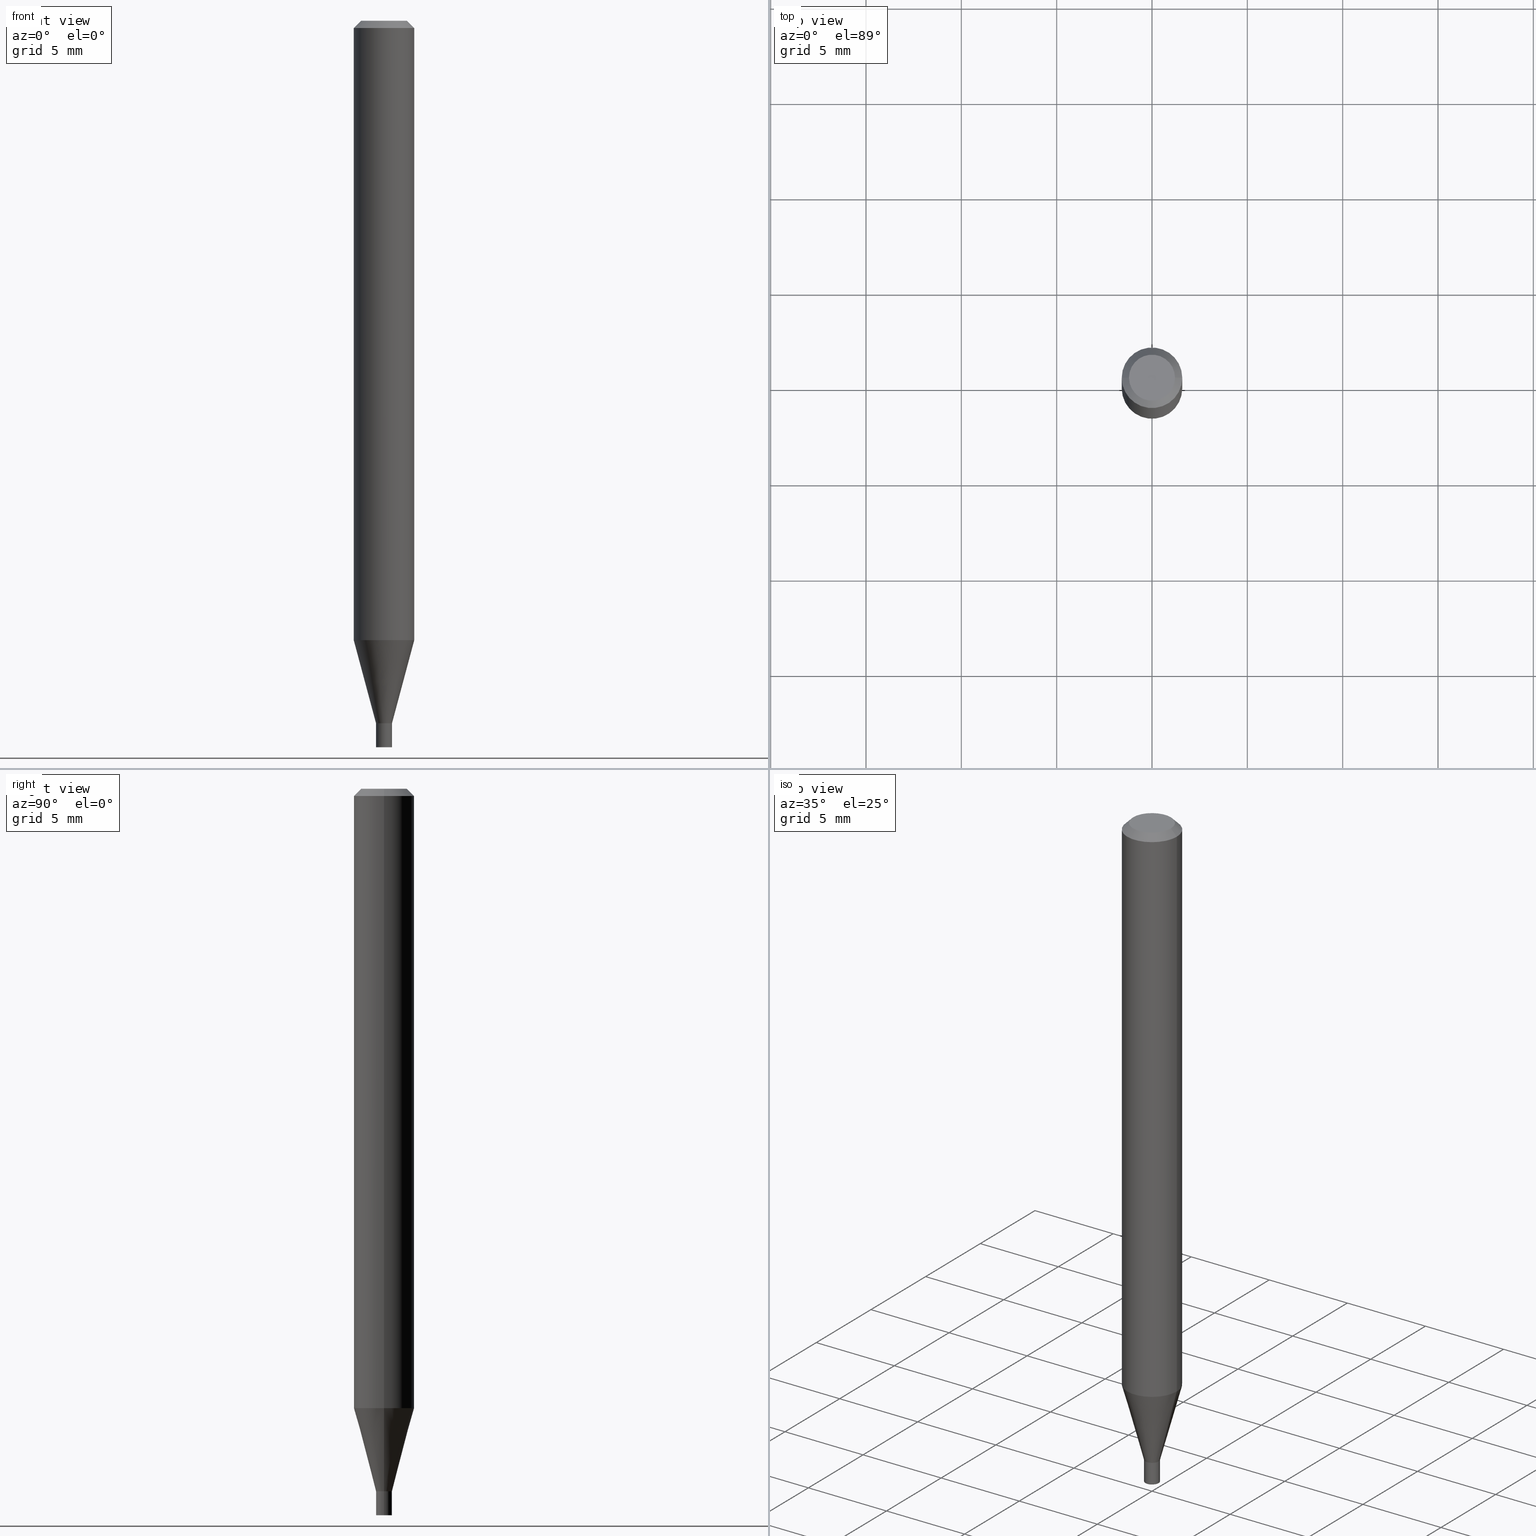
[diagram: canonical four-view strip — front | top / right | iso, engineering-drawing reading convention]
A machine part, canonical four-view strip (front | top / right | iso — engineering-drawing reading convention). The complete STEP part file that produces these views, byte-faithful:
ISO-10303-21;
HEADER;
FILE_DESCRIPTION (( 'STEP AP203' ),
    '1' );
FILE_NAME ('04068.STEP',
    '2024-03-14T16:56:40',
    ( '' ),
    ( '' ),
    'SwSTEP 2.0',
    'SolidWorks 2023',
    '' );
FILE_SCHEMA (( 'CONFIG_CONTROL_DESIGN' ));
ENDSEC;

DATA;
#1 = CARTESIAN_POINT ( 'NONE',  ( 3.127328267053182321E-29, -4.464995937480882863E-15, -1.278825662851830858 ) ) ;
#2 = VECTOR ( 'NONE', #207, 39.37007874015748854 ) ;
#3 = FACE_OUTER_BOUND ( 'NONE', #309, .T. ) ;
#4 = DIRECTION ( 'NONE',  ( 1.000000000000000000, -6.982962677686274599E-15, 0.000000000000000000 ) ) ;
#5 = DIRECTION ( 'NONE',  ( 1.000000000000000000, -6.982962677686271444E-15, 0.000000000000000000 ) ) ;
#6 = PRODUCT ( '04068', '04068', '', ( #361 ) ) ;
#7 = CARTESIAN_POINT ( 'NONE',  ( 0.06250000000000000000, -4.364351673553916694E-16, 3.047610484872459871E-30 ) ) ;
#8 = DIRECTION ( 'NONE',  ( 1.000000000000000000, -6.982962677686266711E-15, 0.000000000000000000 ) ) ;
#9 = ADVANCED_FACE ( 'NONE', ( #359 ), #317, .F. ) ;
#10 = DIRECTION ( 'NONE',  ( 1.000000000000000000, -6.982962677686273021E-15, 0.000000000000000000 ) ) ;
#11 = VECTOR ( 'NONE', #177, 39.37007874015748143 ) ;
#12 = CARTESIAN_POINT ( 'NONE',  ( -0.01649999999999965383, -4.484030429111193904E-15, -1.450499999999999901 ) ) ;
#13 = ORIENTED_EDGE ( 'NONE', *, *, #274, .F. ) ;
#14 = APPROVAL_PERSON_ORGANIZATION ( #189, #366, #466 ) ;
#15 = EDGE_CURVE ( 'NONE', #90, #204, #81, .T. ) ;
#16 = CARTESIAN_POINT ( 'NONE',  ( -0.01649999999999965383, -4.947154130591568350E-15, -1.450499999999999901 ) ) ;
#17 = EDGE_LOOP ( 'NONE', ( #68, #102, #439, #166 ) ) ;
#18 = EDGE_CURVE ( 'NONE', #409, #275, #446, .T. ) ;
#19 = LINE ( 'NONE', #31, #11 ) ;
#20 = ORIENTED_EDGE ( 'NONE', *, *, #388, .F. ) ;
#21 = CC_DESIGN_PERSON_AND_ORGANIZATION_ASSIGNMENT ( #456, #148, ( #231 ) ) ;
#22 = DIRECTION ( 'NONE',  ( 1.000000000000000000, -6.982962677686265922E-15, 4.876176775795935793E-29 ) ) ;
#23 = DIRECTION ( 'NONE',  ( -2.445468806185136877E-29, 3.491481338843145188E-15, 1.000000000000000000 ) ) ;
#24 = EDGE_LOOP ( 'NONE', ( #104, #132, #184, #106 ) ) ;
#25 = VERTEX_POINT ( 'NONE', #43 ) ;
#26 = AXIS2_PLACEMENT_3D ( 'NONE', #80, #82, #227 ) ;
#27 = DIRECTION ( 'NONE',  ( 2.438088387897960049E-29, -3.491481338843145188E-15, -1.000000000000000000 ) ) ;
#28 = CARTESIAN_POINT ( 'NONE',  ( 0.04749999999999999362, -4.035134999187569255E-16, 4.958922291554157852E-16 ) ) ;
#29 = VERTEX_POINT ( 'NONE', #192 ) ;
#30 = ORIENTED_EDGE ( 'NONE', *, *, #237, .T. ) ;
#31 = CARTESIAN_POINT ( 'NONE',  ( 0.01650000000000000078, -1.152188841818234017E-16, 8.045691680063294479E-31 ) ) ;
#32 = CONICAL_SURFACE ( 'NONE', #26, 0.06250000000000000000, 0.7853981633974318477 ) ;
#33 = DATE_AND_TIME ( #179, #79 ) ;
#34 = EDGE_CURVE ( 'NONE', #90, #275, #436, .T. ) ;
#35 =( CONVERSION_BASED_UNIT ( 'INCH', #151 ) LENGTH_UNIT ( ) NAMED_UNIT ( #134 ) );
#36 = ORIENTED_EDGE ( 'NONE', *, *, #274, .T. ) ;
#37 = APPROVAL_STATUS ( 'not_yet_approved' ) ;
#38 = EDGE_CURVE ( 'NONE', #291, #129, #116, .T. ) ;
#39 = CIRCLE ( 'NONE', #300, 0.01650000000000000078 ) ;
#40 = AXIS2_PLACEMENT_3D ( 'NONE', #147, #428, #185 ) ;
#41 = CARTESIAN_POINT ( 'NONE',  ( 0.01649999999999965383, -5.179612566173803826E-15, -1.450499999999999901 ) ) ;
#42 = FACE_OUTER_BOUND ( 'NONE', #236, .T. ) ;
#43 = CARTESIAN_POINT ( 'NONE',  ( -0.06250000000000000000, -4.020906727630820247E-15, -1.278825662851830858 ) ) ;
#44 = CARTESIAN_POINT ( 'NONE',  ( -1.212688977629174450E-44, 1.731398464173454166E-30, 4.958922291554132214E-16 ) ) ;
#45 = VECTOR ( 'NONE', #156, 39.37007874015748143 ) ;
#46 = CARTESIAN_POINT ( 'NONE',  ( 0.01649999999999965383, -1.152188841818209612E-16, 8.045691680063124571E-31 ) ) ;
#47 = DIRECTION ( 'NONE',  ( 1.000000000000000000, -6.982962677686273021E-15, 0.000000000000000000 ) ) ;
#48 = FACE_OUTER_BOUND ( 'NONE', #451, .T. ) ;
#49 = EDGE_CURVE ( 'NONE', #29, #173, #84, .T. ) ;
#50 = CYLINDRICAL_SURFACE ( 'NONE', #462, 0.06250000000000000000 ) ;
#51 = LINE ( 'NONE', #210, #279 ) ;
#52 = VERTEX_POINT ( 'NONE', #159 ) ;
#53 = EDGE_CURVE ( 'NONE', #108, #409, #51, .T. ) ;
#54 = DIRECTION ( 'NONE',  ( -1.000000000000000000, 6.982962677686266711E-15, 0.000000000000000000 ) ) ;
#55 = VECTOR ( 'NONE', #167, 39.37007874015748854 ) ;
#56 = LINE ( 'NONE', #131, #377 ) ;
#57 = CIRCLE ( 'NONE', #139, 0.01650000000000000078 ) ;
#58 = CARTESIAN_POINT ( 'NONE',  ( -0.06250000000000000000, 3.840629472727444916E-16, -0.01499999999999999944 ) ) ;
#59 = DIRECTION ( 'NONE',  ( -2.445468806185136597E-29, 3.491481338843145583E-15, 1.000000000000000000 ) ) ;
#60 = CARTESIAN_POINT ( 'NONE',  ( 3.576687321579069994E-29, -5.368277968210015545E-15, -1.500000000000000222 ) ) ;
#61 = APPLICATION_CONTEXT ( 'configuration controlled 3d designs of mechanical parts and assemblies' ) ;
#62 = CARTESIAN_POINT ( 'NONE',  ( -0.01649999999999965036, -4.945408389922146846E-15, -1.450000000000000178 ) ) ;
#63 = ORIENTED_EDGE ( 'NONE', *, *, #429, .T. ) ;
#64 = VERTEX_POINT ( 'NONE', #411 ) ;
#65 = CIRCLE ( 'NONE', #286, 0.01649999999999965036 ) ;
#66 = APPROVAL ( #86, 'UNSPECIFIED' ) ;
#67 = CARTESIAN_POINT ( 'NONE',  ( 0.06250000000000000000, -4.811533449433679005E-16, -0.01499999999999999944 ) ) ;
#68 = ORIENTED_EDGE ( 'NONE', *, *, #399, .F. ) ;
#69 = APPROVAL_ROLE ( '' ) ;
#70 = ORIENTED_EDGE ( 'NONE', *, *, #38, .T. ) ;
#71 = DATE_TIME_ROLE ( 'creation_date' ) ;
#72 = ORIENTED_EDGE ( 'NONE', *, *, #15, .F. ) ;
#73 = AXIS2_PLACEMENT_3D ( 'NONE', #327, #182, #127 ) ;
#74 = AXIS2_PLACEMENT_3D ( 'NONE', #60, #351, #22 ) ;
#75 = COORDINATED_UNIVERSAL_TIME_OFFSET ( 5, 0, .BEHIND. ) ;
#76 = DATE_TIME_ROLE ( 'classification_date' ) ;
#77 = PRODUCT_DEFINITION ( 'UNKNOWN', '', #231, #217 ) ;
#78 = VECTOR ( 'NONE', #165, 39.37007874015748143 ) ;
#79 = LOCAL_TIME ( 12, 56, 40.00000000000000000, #369 ) ;
#80 = CARTESIAN_POINT ( 'NONE',  ( 3.668203209277705088E-31, -5.237222008264718399E-17, -0.01499999999999999944 ) ) ;
#81 = LINE ( 'NONE', #41, #107 ) ;
#82 = DIRECTION ( 'NONE',  ( 2.445468806185136597E-29, -3.491481338843145583E-15, -1.000000000000000000 ) ) ;
#83 = DIRECTION ( 'NONE',  ( 1.000000000000000000, -6.982962677686273021E-15, 0.000000000000000000 ) ) ;
#84 = CIRCLE ( 'NONE', #318, 0.06250000000000000000 ) ;
#85 = DIRECTION ( 'NONE',  ( 1.000000000000000000, -6.982962677686262766E-15, 0.000000000000000000 ) ) ;
#86 = APPROVAL_STATUS ( 'not_yet_approved' ) ;
#87 = DIRECTION ( 'NONE',  ( 1.000000000000000000, -6.982962677686267499E-15, 4.852736867747366768E-29 ) ) ;
#88 = CARTESIAN_POINT ( 'NONE',  ( 3.547152503371539970E-29, -5.064393681991981435E-15, -1.450499999999999678 ) ) ;
#89 = EDGE_CURVE ( 'NONE', #204, #25, #310, .T. ) ;
#90 = VERTEX_POINT ( 'NONE', #343 ) ;
#91 = DIRECTION ( 'NONE',  ( -2.445468806185136597E-29, 3.491481338843145583E-15, 1.000000000000000000 ) ) ;
#92 = DIRECTION ( 'NONE',  ( 1.000000000000000000, -6.982962677686262766E-15, 0.000000000000000000 ) ) ;
#93 = ORIENTED_EDGE ( 'NONE', *, *, #270, .F. ) ;
#94 = DIRECTION ( 'NONE',  ( 1.000000000000000000, -6.982962677686243834E-15, 0.000000000000000000 ) ) ;
#95 = FACE_OUTER_BOUND ( 'NONE', #441, .T. ) ;
#96 = EDGE_LOOP ( 'NONE', ( #70, #36 ) ) ;
#97 = LOCAL_TIME ( 12, 56, 40.00000000000000000, #394 ) ;
#98 = LINE ( 'NONE', #142, #78 ) ;
#99 = ORIENTED_EDGE ( 'NONE', *, *, #251, .T. ) ;
#100 = DIRECTION ( 'NONE',  ( -2.445468806185136597E-29, 3.491481338843145583E-15, 1.000000000000000000 ) ) ;
#101 = CARTESIAN_POINT ( 'NONE',  ( 0.000000000000000000, 0.000000000000000000, 0.000000000000000000 ) ) ;
#102 = ORIENTED_EDGE ( 'NONE', *, *, #53, .T. ) ;
#103 = ORIENTED_EDGE ( 'NONE', *, *, #261, .T. ) ;
#104 = ORIENTED_EDGE ( 'NONE', *, *, #360, .F. ) ;
#105 = CARTESIAN_POINT ( 'NONE',  ( -0.01600000000000000033, -4.948057617096256470E-15, -1.450499999999999678 ) ) ;
#106 = ORIENTED_EDGE ( 'NONE', *, *, #49, .T. ) ;
#107 = VECTOR ( 'NONE', #117, 39.37007874015747433 ) ;
#108 = VERTEX_POINT ( 'NONE', #12 ) ;
#109 = DATE_AND_TIME ( #181, #188 ) ;
#110 = EDGE_CURVE ( 'NONE', #423, #52, #56, .T. ) ;
#111 = PERSON_AND_ORGANIZATION ( #442, #390 ) ;
#112 = AXIS2_PLACEMENT_3D ( 'NONE', #163, #202, #92 ) ;
#113 = CC_DESIGN_APPROVAL ( #66, ( #396 ) ) ;
#114 = DIRECTION ( 'NONE',  ( 0.000000000000000000, 0.000000000000000000, 1.000000000000000000 ) ) ;
#115 = ADVANCED_BREP_SHAPE_REPRESENTATION ( '04068', ( #322, #325, #257 ), #150 ) ;
#116 = CIRCLE ( 'NONE', #335, 0.04749999999999999362 ) ;
#117 = DIRECTION ( 'NONE',  ( 0.2588190451025213501, 1.565188264969621968E-15, 0.9659258262890682012 ) ) ;
#118 = CARTESIAN_POINT ( 'NONE',  ( 3.668203209277704895E-29, -5.237222008264718177E-15, -1.500000000000000222 ) ) ;
#119 = DIRECTION ( 'NONE',  ( 1.000000000000000000, -6.982962677686274599E-15, 0.000000000000000000 ) ) ;
#120 = ADVANCED_FACE ( 'NONE', ( #95 ), #208, .T. ) ;
#121 = CC_DESIGN_PERSON_AND_ORGANIZATION_ASSIGNMENT ( #254, #395, ( #396 ) ) ;
#122 = CARTESIAN_POINT ( 'NONE',  ( 3.547152503371539970E-29, -5.064393681991981435E-15, -1.450499999999999678 ) ) ;
#123 = CIRCLE ( 'NONE', #186, 0.01600000000000000033 ) ;
#124 = DIRECTION ( 'NONE',  ( -2.445468806185136597E-29, 3.491481338843145583E-15, 1.000000000000000000 ) ) ;
#125 = CARTESIAN_POINT ( 'NONE',  ( 3.547152503371540530E-29, -5.064393681991982224E-15, -1.450499999999999901 ) ) ;
#126 = ORIENTED_EDGE ( 'NONE', *, *, #307, .T. ) ;
#127 = DIRECTION ( 'NONE',  ( -1.000000000000000000, 6.982962677686265922E-15, -4.876176775795935793E-29 ) ) ;
#128 = CARTESIAN_POINT ( 'NONE',  ( 3.668203209277705088E-31, -5.237222008264718399E-17, -0.01499999999999999944 ) ) ;
#129 = VERTEX_POINT ( 'NONE', #28 ) ;
#130 = DIRECTION ( 'NONE',  ( -2.445468806185136597E-29, 3.491481338843145583E-15, 1.000000000000000000 ) ) ;
#131 = CARTESIAN_POINT ( 'NONE',  ( -0.01650000000000000078, 1.172395514004165362E-16, -8.116242898920594736E-31 ) ) ;
#132 = ORIENTED_EDGE ( 'NONE', *, *, #38, .F. ) ;
#133 = ORIENTED_EDGE ( 'NONE', *, *, #49, .F. ) ;
#134 = DIMENSIONAL_EXPONENTS ( 1.000000000000000000, 0.000000000000000000, 0.000000000000000000, 0.000000000000000000, 0.000000000000000000, 0.000000000000000000, 0.000000000000000000 ) ;
#135 = CARTESIAN_POINT ( 'NONE',  ( -0.01650000000000000078, -5.033568293727934749E-15, -1.500000000000000222 ) ) ;
#136 = CONICAL_SURFACE ( 'NONE', #168, 0.01649999999999965383, 0.2617993877991500740 ) ;
#137 = ORIENTED_EDGE ( 'NONE', *, *, #222, .T. ) ;
#138 = ORIENTED_EDGE ( 'NONE', *, *, #261, .F. ) ;
#139 = AXIS2_PLACEMENT_3D ( 'NONE', #169, #100, #212 ) ;
#140 = FACE_OUTER_BOUND ( 'NONE', #17, .T. ) ;
#141 = ORIENTED_EDGE ( 'NONE', *, *, #224, .F. ) ;
#142 = CARTESIAN_POINT ( 'NONE',  ( 0.01600000000000000033, -5.176121084834961608E-15, -1.450499999999999678 ) ) ;
#143 = ADVANCED_FACE ( 'NONE', ( #246 ), #355, .F. ) ;
#144 = CARTESIAN_POINT ( 'NONE',  ( 3.547152503371540530E-29, -5.064393681991982224E-15, -1.450499999999999901 ) ) ;
#145 = ORIENTED_EDGE ( 'NONE', *, *, #110, .F. ) ;
#146 = ORIENTED_EDGE ( 'NONE', *, *, #258, .T. ) ;
#147 = CARTESIAN_POINT ( 'NONE',  ( 3.547152503371539970E-29, -5.064393681991981435E-15, -1.450499999999999678 ) ) ;
#148 = PERSON_AND_ORGANIZATION_ROLE ( 'creator' ) ;
#149 = AXIS2_PLACEMENT_3D ( 'NONE', #125, #201, #47 ) ;
#150 =( GEOMETRIC_REPRESENTATION_CONTEXT ( 3 ) GLOBAL_UNCERTAINTY_ASSIGNED_CONTEXT ( ( #336 ) ) GLOBAL_UNIT_ASSIGNED_CONTEXT ( ( #35, #427, #216 ) ) REPRESENTATION_CONTEXT ( 'NONE', 'WORKASPACE' ) );
#151 = LENGTH_MEASURE_WITH_UNIT ( LENGTH_MEASURE( 0.02539999999999999897 ), #364 );
#152 = EDGE_CURVE ( 'NONE', #90, #108, #438, .T. ) ;
#153 = FACE_OUTER_BOUND ( 'NONE', #211, .T. ) ;
#154 = CIRCLE ( 'NONE', #256, 0.06250000000000000000 ) ;
#155 = FACE_OUTER_BOUND ( 'NONE', #461, .T. ) ;
#156 = DIRECTION ( 'NONE',  ( -2.445468806185136877E-29, 3.491481338843145188E-15, 1.000000000000000000 ) ) ;
#157 = CARTESIAN_POINT ( 'NONE',  ( 0.01650000000000000078, -5.179612566173805404E-15, -1.450499999999999901 ) ) ;
#158 = DIRECTION ( 'NONE',  ( -2.445468806185136597E-29, 3.491481338843145583E-15, 1.000000000000000000 ) ) ;
#159 = CARTESIAN_POINT ( 'NONE',  ( -0.01650000000000000078, -5.033568293727934749E-15, -1.450499999999999901 ) ) ;
#160 = APPLICATION_CONTEXT ( 'configuration controlled 3d designs of mechanical parts and assemblies' ) ;
#161 = AXIS2_PLACEMENT_3D ( 'NONE', #200, #264, #10 ) ;
#162 = DIRECTION ( 'NONE',  ( -2.445468806185136877E-29, 3.491481338843145188E-15, 1.000000000000000000 ) ) ;
#163 = CARTESIAN_POINT ( 'NONE',  ( 3.127328267053182321E-29, -4.464995937480882863E-15, -1.278825662851830858 ) ) ;
#164 = VERTEX_POINT ( 'NONE', #157 ) ;
#165 = DIRECTION ( 'NONE',  ( 0.7071067811865642261, -2.468850131082431399E-15, 0.7071067811865309194 ) ) ;
#166 = ORIENTED_EDGE ( 'NONE', *, *, #34, .F. ) ;
#167 = DIRECTION ( 'NONE',  ( 0.7071067811865358044, -7.319954787623215025E-15, -0.7071067811865591191 ) ) ;
#168 = AXIS2_PLACEMENT_3D ( 'NONE', #297, #234, #83 ) ;
#169 = CARTESIAN_POINT ( 'NONE',  ( 3.668203209277704895E-29, -5.237222008264718177E-15, -1.500000000000000222 ) ) ;
#170 = CC_DESIGN_SECURITY_CLASSIFICATION ( #396, ( #231 ) ) ;
#171 = EDGE_LOOP ( 'NONE', ( #30, #63, #350, #457 ) ) ;
#172 = CYLINDRICAL_SURFACE ( 'NONE', #416, 0.01650000000000000078 ) ;
#173 = VERTEX_POINT ( 'NONE', #338 ) ;
#174 = ORIENTED_EDGE ( 'NONE', *, *, #378, .F. ) ;
#175 = ADVANCED_FACE ( 'NONE', ( #3 ), #50, .T. ) ;
#176 = ORIENTED_EDGE ( 'NONE', *, *, #224, .T. ) ;
#177 = DIRECTION ( 'NONE',  ( -2.445468806185136877E-29, 3.491481338843145188E-15, 1.000000000000000000 ) ) ;
#178 = ORIENTED_EDGE ( 'NONE', *, *, #319, .T. ) ;
#179 = CALENDAR_DATE ( 2024, 14, 3 ) ;
#180 = LOCAL_TIME ( 12, 56, 40.00000000000000000, #403 ) ;
#181 = CALENDAR_DATE ( 2024, 14, 3 ) ;
#182 = DIRECTION ( 'NONE',  ( 2.438088387897960049E-29, -3.491481338843145188E-15, -1.000000000000000000 ) ) ;
#183 = PERSON_AND_ORGANIZATION_ROLE ( 'design_owner' ) ;
#184 = ORIENTED_EDGE ( 'NONE', *, *, #378, .T. ) ;
#185 = DIRECTION ( 'NONE',  ( 1.000000000000000000, -6.982962677686271444E-15, 0.000000000000000000 ) ) ;
#186 = AXIS2_PLACEMENT_3D ( 'NONE', #298, #299, #265 ) ;
#187 = ADVANCED_FACE ( 'NONE', ( #48 ), #329, .T. ) ;
#188 = LOCAL_TIME ( 12, 56, 40.00000000000000000, #218 ) ;
#189 = PERSON_AND_ORGANIZATION ( #442, #390 ) ;
#190 = ADVANCED_FACE ( 'NONE', ( #153 ), #136, .T. ) ;
#191 = DIRECTION ( 'NONE',  ( -2.445468806185136597E-29, 3.491481338843145583E-15, 1.000000000000000000 ) ) ;
#192 = CARTESIAN_POINT ( 'NONE',  ( -0.06250000000000000000, -1.814594868931702552E-15, -0.01499999999999999944 ) ) ;
#193 = CARTESIAN_POINT ( 'NONE',  ( 3.547152503371540530E-29, -5.064393681991982224E-15, -1.450499999999999901 ) ) ;
#194 = ADVANCED_FACE ( 'NONE', ( #42 ), #195, .T. ) ;
#195 = CONICAL_SURFACE ( 'NONE', #161, 0.01649999999999965383, 0.2617993877991500740 ) ;
#196 = AXIS2_PLACEMENT_3D ( 'NONE', #444, #91, #235 ) ;
#197 = SHAPE_DEFINITION_REPRESENTATION ( #464, #115 ) ;
#198 = FACE_OUTER_BOUND ( 'NONE', #24, .T. ) ;
#199 = PERSON_AND_ORGANIZATION ( #442, #390 ) ;
#200 = CARTESIAN_POINT ( 'NONE',  ( 3.547152503371540530E-29, -5.064393681991982224E-15, -1.450499999999999901 ) ) ;
#201 = DIRECTION ( 'NONE',  ( -2.445468806185136597E-29, 3.491481338843145583E-15, 1.000000000000000000 ) ) ;
#202 = DIRECTION ( 'NONE',  ( -2.445468806185136597E-29, 3.491481338843145583E-15, 1.000000000000000000 ) ) ;
#203 = ORIENTED_EDGE ( 'NONE', *, *, #460, .F. ) ;
#204 = VERTEX_POINT ( 'NONE', #332 ) ;
#205 = AXIS2_PLACEMENT_3D ( 'NONE', #44, #437, #382 ) ;
#206 = CYLINDRICAL_SURFACE ( 'NONE', #262, 0.01649999999999965383 ) ;
#207 = DIRECTION ( 'NONE',  ( -0.7071067811865358044, 2.468850131082134787E-15, -0.7071067811865591191 ) ) ;
#208 = CYLINDRICAL_SURFACE ( 'NONE', #353, 0.06250000000000000000 ) ;
#209 = DIRECTION ( 'NONE',  ( 1.000000000000000000, -6.982962677686273021E-15, 0.000000000000000000 ) ) ;
#210 = CARTESIAN_POINT ( 'NONE',  ( -0.01649999999999965383, 1.172395514004140710E-16, -8.116242898920424829E-31 ) ) ;
#211 = EDGE_LOOP ( 'NONE', ( #214, #281, #419, #72 ) ) ;
#212 = DIRECTION ( 'NONE',  ( 1.000000000000000000, -6.982962677686243834E-15, 0.000000000000000000 ) ) ;
#213 = ORIENTED_EDGE ( 'NONE', *, *, #429, .F. ) ;
#214 = ORIENTED_EDGE ( 'NONE', *, *, #152, .T. ) ;
#215 = LINE ( 'NONE', #16, #220 ) ;
#216 =( NAMED_UNIT ( * ) SI_UNIT ( $, .STERADIAN. ) SOLID_ANGLE_UNIT ( ) );
#217 = DESIGN_CONTEXT ( 'detailed design', #61, 'design' ) ;
#218 = COORDINATED_UNIVERSAL_TIME_OFFSET ( 5, 0, .BEHIND. ) ;
#219 = EDGE_LOOP ( 'NONE', ( #314, #426, #348, #99 ) ) ;
#220 = VECTOR ( 'NONE', #349, 39.37007874015747433 ) ;
#221 = CALENDAR_DATE ( 2024, 14, 3 ) ;
#222 = EDGE_CURVE ( 'NONE', #25, #29, #408, .T. ) ;
#223 = PERSON_AND_ORGANIZATION ( #442, #390 ) ;
#224 = EDGE_CURVE ( 'NONE', #173, #29, #269, .T. ) ;
#225 = AXIS2_PLACEMENT_3D ( 'NONE', #128, #383, #54 ) ;
#226 = ADVANCED_FACE ( 'NONE', ( #198 ), #32, .T. ) ;
#227 = DIRECTION ( 'NONE',  ( -1.000000000000000000, 6.982962677686266711E-15, 0.000000000000000000 ) ) ;
#228 = DIRECTION ( 'NONE',  ( -2.445468806185136597E-29, 3.491481338843145583E-15, 1.000000000000000000 ) ) ;
#229 = CARTESIAN_POINT ( 'NONE',  ( 0.000000000000000000, 0.000000000000000000, 0.000000000000000000 ) ) ;
#230 = CIRCLE ( 'NONE', #238, 0.01600000000000000033 ) ;
#231 = PRODUCT_DEFINITION_FORMATION_WITH_SPECIFIED_SOURCE ( 'ANY', '', #6, .NOT_KNOWN. ) ;
#232 = DIRECTION ( 'NONE',  ( -2.445468806185136597E-29, 3.491481338843145583E-15, 1.000000000000000000 ) ) ;
#233 = CARTESIAN_POINT ( 'NONE',  ( 3.668203209277705088E-31, -5.237222008264718399E-17, -0.01499999999999999944 ) ) ;
#234 = DIRECTION ( 'NONE',  ( -2.445468806185136597E-29, 3.491481338843145583E-15, 1.000000000000000000 ) ) ;
#235 = DIRECTION ( 'NONE',  ( 1.000000000000000000, -6.982962677686265133E-15, 4.876176775795935232E-29 ) ) ;
#236 = EDGE_LOOP ( 'NONE', ( #20, #328, #344, #138 ) ) ;
#237 = EDGE_CURVE ( 'NONE', #64, #305, #230, .T. ) ;
#238 = AXIS2_PLACEMENT_3D ( 'NONE', #88, #191, #5 ) ;
#239 = DIRECTION ( 'NONE',  ( -2.445468806185136597E-29, 3.491481338843145583E-15, 1.000000000000000000 ) ) ;
#240 = ORIENTED_EDGE ( 'NONE', *, *, #460, .T. ) ;
#241 = EDGE_LOOP ( 'NONE', ( #445, #203 ) ) ;
#242 = DIRECTION ( 'NONE',  ( -2.445468806185136597E-29, 3.491481338843145583E-15, 1.000000000000000000 ) ) ;
#243 = ORIENTED_EDGE ( 'NONE', *, *, #266, .T. ) ;
#244 = ORIENTED_EDGE ( 'NONE', *, *, #18, .F. ) ;
#245 = DIRECTION ( 'NONE',  ( -1.000000000000000000, 6.982962677686265922E-15, -4.876176775795935793E-29 ) ) ;
#246 = FACE_OUTER_BOUND ( 'NONE', #356, .T. ) ;
#247 = ORIENTED_EDGE ( 'NONE', *, *, #290, .F. ) ;
#248 = ORIENTED_EDGE ( 'NONE', *, *, #360, .T. ) ;
#249 = CIRCLE ( 'NONE', #205, 0.04749999999999999362 ) ;
#250 = LINE ( 'NONE', #67, #55 ) ;
#251 = EDGE_CURVE ( 'NONE', #275, #409, #65, .T. ) ;
#252 = APPROVAL_STATUS ( 'not_yet_approved' ) ;
#253 = ORIENTED_EDGE ( 'NONE', *, *, #258, .F. ) ;
#254 = PERSON_AND_ORGANIZATION ( #442, #390 ) ;
#255 = AXIS2_PLACEMENT_3D ( 'NONE', #296, #375, #4 ) ;
#256 = AXIS2_PLACEMENT_3D ( 'NONE', #1, #374, #85 ) ;
#257 = AXIS2_PLACEMENT_3D ( 'NONE', #259, #114, #292 ) ;
#258 = EDGE_CURVE ( 'NONE', #305, #64, #123, .T. ) ;
#259 = CARTESIAN_POINT ( 'NONE',  ( 0.000000000000000000, 0.000000000000000000, 0.000000000000000000 ) ) ;
#260 = SECURITY_CLASSIFICATION_LEVEL ( 'unclassified' ) ;
#261 = EDGE_CURVE ( 'NONE', #25, #204, #154, .T. ) ;
#262 = AXIS2_PLACEMENT_3D ( 'NONE', #315, #452, #443 ) ;
#263 = AXIS2_PLACEMENT_3D ( 'NONE', #410, #242, #94 ) ;
#264 = DIRECTION ( 'NONE',  ( -2.445468806185136597E-29, 3.491481338843145583E-15, 1.000000000000000000 ) ) ;
#265 = DIRECTION ( 'NONE',  ( 1.000000000000000000, -6.982962677686271444E-15, 0.000000000000000000 ) ) ;
#266 = EDGE_CURVE ( 'NONE', #387, #423, #371, .T. ) ;
#267 = CARTESIAN_POINT ( 'NONE',  ( -1.212688977629174450E-44, 1.731398464173454166E-30, 4.958922291554132214E-16 ) ) ;
#268 = DIRECTION ( 'NONE',  ( -2.445468806185136877E-29, 3.491481338843145188E-15, 1.000000000000000000 ) ) ;
#269 = CIRCLE ( 'NONE', #447, 0.06250000000000000000 ) ;
#270 = EDGE_CURVE ( 'NONE', #204, #173, #432, .T. ) ;
#271 = CARTESIAN_POINT ( 'NONE',  ( 3.547152503371539970E-29, -5.064393681991981435E-15, -1.450499999999999678 ) ) ;
#272 = ORIENTED_EDGE ( 'NONE', *, *, #290, .T. ) ;
#273 = DIRECTION ( 'NONE',  ( -2.445468806185136597E-29, 3.491481338843145583E-15, 1.000000000000000000 ) ) ;
#274 = EDGE_CURVE ( 'NONE', #129, #291, #249, .T. ) ;
#275 = VERTEX_POINT ( 'NONE', #302 ) ;
#276 = CARTESIAN_POINT ( 'NONE',  ( 0.000000000000000000, 0.000000000000000000, 0.000000000000000000 ) ) ;
#277 = ORIENTED_EDGE ( 'NONE', *, *, #237, .F. ) ;
#278 = CC_DESIGN_DATE_AND_TIME_ASSIGNMENT ( #368, #76, ( #396 ) ) ;
#279 = VECTOR ( 'NONE', #23, 39.37007874015748143 ) ;
#280 = DIRECTION ( 'NONE',  ( -0.7071067811865642261, 7.493145998870414114E-15, 0.7071067811865309194 ) ) ;
#281 = ORIENTED_EDGE ( 'NONE', *, *, #388, .T. ) ;
#282 = CYLINDRICAL_SURFACE ( 'NONE', #448, 0.01650000000000000078 ) ;
#283 = ORIENTED_EDGE ( 'NONE', *, *, #400, .F. ) ;
#284 = FACE_OUTER_BOUND ( 'NONE', #352, .T. ) ;
#285 = CC_DESIGN_PERSON_AND_ORGANIZATION_ASSIGNMENT ( #331, #183, ( #6 ) ) ;
#286 = AXIS2_PLACEMENT_3D ( 'NONE', #340, #273, #119 ) ;
#287 = APPROVAL_DATE_TIME ( #33, #366 ) ;
#288 = ORIENTED_EDGE ( 'NONE', *, *, #319, .F. ) ;
#289 = PERSON_AND_ORGANIZATION_ROLE ( 'design_supplier' ) ;
#290 = EDGE_CURVE ( 'NONE', #52, #164, #39, .T. ) ;
#291 = VERTEX_POINT ( 'NONE', #404 ) ;
#292 = DIRECTION ( 'NONE',  ( 1.000000000000000000, 0.000000000000000000, 0.000000000000000000 ) ) ;
#293 = DIRECTION ( 'NONE',  ( 1.000000000000000000, -6.982962677686266711E-15, 4.876176775795935793E-29 ) ) ;
#294 = AXIS2_PLACEMENT_3D ( 'NONE', #118, #232, #372 ) ;
#295 = VECTOR ( 'NONE', #280, 39.37007874015748143 ) ;
#296 = CARTESIAN_POINT ( 'NONE',  ( 3.545929768968448850E-29, -5.062647941322561509E-15, -1.450000000000000178 ) ) ;
#297 = CARTESIAN_POINT ( 'NONE',  ( 3.547152503371540530E-29, -5.064393681991982224E-15, -1.450499999999999901 ) ) ;
#298 = CARTESIAN_POINT ( 'NONE',  ( 3.547152503371539970E-29, -5.064393681991981435E-15, -1.450499999999999678 ) ) ;
#299 = DIRECTION ( 'NONE',  ( -2.445468806185136597E-29, 3.491481338843145583E-15, 1.000000000000000000 ) ) ;
#300 = AXIS2_PLACEMENT_3D ( 'NONE', #193, #334, #440 ) ;
#301 = ADVANCED_FACE ( 'NONE', ( #155 ), #424, .T. ) ;
#302 = CARTESIAN_POINT ( 'NONE',  ( 0.01649999999999965036, -5.177866825504382322E-15, -1.450000000000000178 ) ) ;
#303 = ORIENTED_EDGE ( 'NONE', *, *, #110, .T. ) ;
#304 = FACE_OUTER_BOUND ( 'NONE', #219, .T. ) ;
#305 = VERTEX_POINT ( 'NONE', #105 ) ;
#306 = ORIENTED_EDGE ( 'NONE', *, *, #400, .T. ) ;
#307 = EDGE_CURVE ( 'NONE', #64, #275, #98, .T. ) ;
#308 = CYLINDRICAL_SURFACE ( 'NONE', #196, 0.01649999999999965383 ) ;
#309 = EDGE_LOOP ( 'NONE', ( #392, #103, #367, #133 ) ) ;
#310 = CIRCLE ( 'NONE', #112, 0.06250000000000000000 ) ;
#311 = CC_DESIGN_APPROVAL ( #366, ( #77 ) ) ;
#312 = CONICAL_SURFACE ( 'NONE', #40, 0.01600000000000000033, 0.7853981633974718157 ) ;
#313 = CARTESIAN_POINT ( 'NONE',  ( -0.01600000000000000033, -4.950706844270365304E-15, -1.450499999999999678 ) ) ;
#314 = ORIENTED_EDGE ( 'NONE', *, *, #53, .F. ) ;
#315 = CARTESIAN_POINT ( 'NONE',  ( 0.000000000000000000, 0.000000000000000000, 0.000000000000000000 ) ) ;
#316 = FACE_OUTER_BOUND ( 'NONE', #96, .T. ) ;
#317 = PLANE ( 'NONE',  #73 ) ;
#318 = AXIS2_PLACEMENT_3D ( 'NONE', #233, #59, #8 ) ;
#319 = EDGE_CURVE ( 'NONE', #387, #164, #19, .T. ) ;
#320 = APPLICATION_PROTOCOL_DEFINITION ( 'international standard', 'config_control_design', 1994, #160 ) ;
#321 = CC_DESIGN_APPROVAL ( #449, ( #231 ) ) ;
#322 = MANIFOLD_SOLID_BREP ( 'Body-Move/Copy2[1]', #415 ) ;
#323 = APPROVAL_DATE_TIME ( #109, #449 ) ;
#324 = PRODUCT_RELATED_PRODUCT_CATEGORY ( 'detail', '', ( #6 ) ) ;
#325 = MANIFOLD_SOLID_BREP ( 'Body-Move/Copy2[2]', #405 ) ;
#326 = CALENDAR_DATE ( 2024, 14, 3 ) ;
#327 = CARTESIAN_POINT ( 'NONE',  ( 1.152188841818588511E-16, 0.01649999999999493538, -1.450499999999999901 ) ) ;
#328 = ORIENTED_EDGE ( 'NONE', *, *, #399, .T. ) ;
#329 = CONICAL_SURFACE ( 'NONE', #407, 0.01600000000000000033, 0.7853981633974718157 ) ;
#330 = CIRCLE ( 'NONE', #263, 0.01650000000000000078 ) ;
#331 = PERSON_AND_ORGANIZATION ( #442, #390 ) ;
#332 = CARTESIAN_POINT ( 'NONE',  ( 0.06250000000000000000, -4.901431104836274532E-15, -1.278825662851830858 ) ) ;
#333 = APPROVAL_DATE_TIME ( #373, #66 ) ;
#334 = DIRECTION ( 'NONE',  ( -2.445468806185136597E-29, 3.491481338843145583E-15, 1.000000000000000000 ) ) ;
#335 = AXIS2_PLACEMENT_3D ( 'NONE', #267, #124, #87 ) ;
#336 = UNCERTAINTY_MEASURE_WITH_UNIT (LENGTH_MEASURE( 1.000000000000000082E-05 ), #35, 'distance_accuracy_value', 'NONE');
#337 = ADVANCED_FACE ( 'NONE', ( #140 ), #206, .F. ) ;
#338 = CARTESIAN_POINT ( 'NONE',  ( 0.06250000000000000000, -4.888073874380388472E-16, -0.01499999999999999944 ) ) ;
#339 = ADVANCED_FACE ( 'NONE', ( #284 ), #172, .T. ) ;
#340 = CARTESIAN_POINT ( 'NONE',  ( 3.545929768968448850E-29, -5.062647941322561509E-15, -1.450000000000000178 ) ) ;
#341 = ADVANCED_FACE ( 'NONE', ( #316 ), #385, .F. ) ;
#342 = DIRECTION ( 'NONE',  ( -2.438088387897960049E-29, 3.491481338843145188E-15, 1.000000000000000000 ) ) ;
#343 = CARTESIAN_POINT ( 'NONE',  ( 0.01649999999999965383, -5.179612566173803826E-15, -1.450499999999999901 ) ) ;
#344 = ORIENTED_EDGE ( 'NONE', *, *, #15, .T. ) ;
#345 = VECTOR ( 'NONE', #162, 39.37007874015748143 ) ;
#346 = LOCAL_TIME ( 12, 56, 40.00000000000000000, #75 ) ;
#347 = CARTESIAN_POINT ( 'NONE',  ( 0.000000000000000000, 0.000000000000000000, 0.000000000000000000 ) ) ;
#348 = ORIENTED_EDGE ( 'NONE', *, *, #34, .T. ) ;
#349 = DIRECTION ( 'NONE',  ( -0.2588190451025213501, 5.211531920934551042E-15, 0.9659258262890682012 ) ) ;
#350 = ORIENTED_EDGE ( 'NONE', *, *, #251, .F. ) ;
#351 = DIRECTION ( 'NONE',  ( -2.438088387897960049E-29, 3.491481338843145188E-15, 1.000000000000000000 ) ) ;
#352 = EDGE_LOOP ( 'NONE', ( #145, #240, #178, #247 ) ) ;
#353 = AXIS2_PLACEMENT_3D ( 'NONE', #101, #454, #422 ) ;
#354 = FACE_OUTER_BOUND ( 'NONE', #171, .T. ) ;
#355 = PLANE ( 'NONE',  #363 ) ;
#356 = EDGE_LOOP ( 'NONE', ( #277, #253 ) ) ;
#357 = EDGE_LOOP ( 'NONE', ( #243, #303, #283, #288 ) ) ;
#358 = FACE_OUTER_BOUND ( 'NONE', #357, .T. ) ;
#359 = FACE_OUTER_BOUND ( 'NONE', #362, .T. ) ;
#360 = EDGE_CURVE ( 'NONE', #129, #173, #250, .T. ) ;
#361 = MECHANICAL_CONTEXT ( 'NONE', #160, 'mechanical' ) ;
#362 = EDGE_LOOP ( 'NONE', ( #306, #272 ) ) ;
#363 = AXIS2_PLACEMENT_3D ( 'NONE', #122, #342, #406 ) ;
#364 =( LENGTH_UNIT ( ) NAMED_UNIT ( * ) SI_UNIT ( $, .METRE. ) );
#365 = AXIS2_PLACEMENT_3D ( 'NONE', #144, #239, #209 ) ;
#366 = APPROVAL ( #252, 'UNSPECIFIED' ) ;
#367 = ORIENTED_EDGE ( 'NONE', *, *, #270, .T. ) ;
#368 = DATE_AND_TIME ( #221, #346 ) ;
#369 = COORDINATED_UNIVERSAL_TIME_OFFSET ( 5, 0, .BEHIND. ) ;
#370 = CC_DESIGN_DATE_AND_TIME_ASSIGNMENT ( #458, #71, ( #77 ) ) ;
#371 = CIRCLE ( 'NONE', #294, 0.01650000000000000078 ) ;
#372 = DIRECTION ( 'NONE',  ( 1.000000000000000000, -6.982962677686243834E-15, 0.000000000000000000 ) ) ;
#373 = DATE_AND_TIME ( #380, #180 ) ;
#374 = DIRECTION ( 'NONE',  ( -2.445468806185136597E-29, 3.491481338843145583E-15, 1.000000000000000000 ) ) ;
#375 = DIRECTION ( 'NONE',  ( -2.445468806185136597E-29, 3.491481338843145583E-15, 1.000000000000000000 ) ) ;
#376 = CARTESIAN_POINT ( 'NONE',  ( -0.06250000000000000000, 4.440892098500626162E-16, -3.074334431409316114E-30 ) ) ;
#377 = VECTOR ( 'NONE', #413, 39.37007874015748143 ) ;
#378 = EDGE_CURVE ( 'NONE', #291, #29, #450, .T. ) ;
#379 = APPROVAL_PERSON_ORGANIZATION ( #425, #449, #69 ) ;
#380 = CALENDAR_DATE ( 2024, 14, 3 ) ;
#381 = DIRECTION ( 'NONE',  ( 1.000000000000000000, -6.982962677686266711E-15, 0.000000000000000000 ) ) ;
#382 = DIRECTION ( 'NONE',  ( 1.000000000000000000, -6.982962677686267499E-15, 4.852736867747366768E-29 ) ) ;
#383 = DIRECTION ( 'NONE',  ( 2.445468806185136597E-29, -3.491481338843145583E-15, -1.000000000000000000 ) ) ;
#384 = VECTOR ( 'NONE', #268, 39.37007874015748143 ) ;
#385 = PLANE ( 'NONE',  #455 ) ;
#386 = PLANE ( 'NONE',  #74 ) ;
#387 = VERTEX_POINT ( 'NONE', #389 ) ;
#388 = EDGE_CURVE ( 'NONE', #108, #25, #215, .T. ) ;
#389 = CARTESIAN_POINT ( 'NONE',  ( 0.01650000000000000078, -5.352440892446541357E-15, -1.500000000000000222 ) ) ;
#390 = ORGANIZATION ( 'UNSPECIFIED', 'UNSPECIFIED', '' ) ;
#391 = DIRECTION ( 'NONE',  ( 1.000000000000000000, -6.982962677686266711E-15, 4.876176775795935793E-29 ) ) ;
#392 = ORIENTED_EDGE ( 'NONE', *, *, #222, .F. ) ;
#393 = ADVANCED_FACE ( 'NONE', ( #358 ), #282, .T. ) ;
#394 = COORDINATED_UNIVERSAL_TIME_OFFSET ( 5, 0, .BEHIND. ) ;
#395 = PERSON_AND_ORGANIZATION_ROLE ( 'classification_officer' ) ;
#396 = SECURITY_CLASSIFICATION ( '', '', #260 ) ;
#397 = PERSON_AND_ORGANIZATION_ROLE ( 'creator' ) ;
#398 = APPLICATION_PROTOCOL_DEFINITION ( 'international standard', 'config_control_design', 1994, #61 ) ;
#399 = EDGE_CURVE ( 'NONE', #108, #90, #431, .T. ) ;
#400 = EDGE_CURVE ( 'NONE', #164, #52, #330, .T. ) ;
#401 = CARTESIAN_POINT ( 'NONE',  ( 3.668203209277705088E-31, -5.237222008264718399E-17, -0.01499999999999999944 ) ) ;
#402 = CC_DESIGN_PERSON_AND_ORGANIZATION_ASSIGNMENT ( #223, #397, ( #77 ) ) ;
#403 = COORDINATED_UNIVERSAL_TIME_OFFSET ( 5, 0, .BEHIND. ) ;
#404 = CARTESIAN_POINT ( 'NONE',  ( -0.04749999999999999362, 3.578768372314218888E-16, 4.958922291554107562E-16 ) ) ;
#405 = CLOSED_SHELL ( 'NONE', ( #337, #465, #301, #120, #190, #194, #175, #226, #341, #143, #187, #420 ) ) ;
#406 = DIRECTION ( 'NONE',  ( 1.000000000000000000, -6.982962677686265922E-15, 4.876176775795935793E-29 ) ) ;
#407 = AXIS2_PLACEMENT_3D ( 'NONE', #271, #435, #434 ) ;
#408 = LINE ( 'NONE', #376, #384 ) ;
#409 = VERTEX_POINT ( 'NONE', #62 ) ;
#410 = CARTESIAN_POINT ( 'NONE',  ( 3.547152503371540530E-29, -5.064393681991982224E-15, -1.450499999999999901 ) ) ;
#411 = CARTESIAN_POINT ( 'NONE',  ( 0.01600000000000000033, -5.176121084834961608E-15, -1.450499999999999678 ) ) ;
#412 = CARTESIAN_POINT ( 'NONE',  ( 3.316907271900976096E-16, 0.04749999999999999362, 8.210075098265718960E-17 ) ) ;
#413 = DIRECTION ( 'NONE',  ( -2.445468806185136877E-29, 3.491481338843145188E-15, 1.000000000000000000 ) ) ;
#414 = ORIENTED_EDGE ( 'NONE', *, *, #89, .T. ) ;
#415 = CLOSED_SHELL ( 'NONE', ( #393, #459, #339, #9 ) ) ;
#416 = AXIS2_PLACEMENT_3D ( 'NONE', #276, #421, #391 ) ;
#417 = FACE_OUTER_BOUND ( 'NONE', #241, .T. ) ;
#418 = LINE ( 'NONE', #313, #295 ) ;
#419 = ORIENTED_EDGE ( 'NONE', *, *, #89, .F. ) ;
#420 = ADVANCED_FACE ( 'NONE', ( #304 ), #308, .F. ) ;
#421 = DIRECTION ( 'NONE',  ( -2.445468806185136597E-29, 3.491481338843145583E-15, 1.000000000000000000 ) ) ;
#422 = DIRECTION ( 'NONE',  ( 1.000000000000000000, -6.982962677686266711E-15, 4.876176775795935793E-29 ) ) ;
#423 = VERTEX_POINT ( 'NONE', #135 ) ;
#424 = CONICAL_SURFACE ( 'NONE', #225, 0.06250000000000000000, 0.7853981633974318477 ) ;
#425 = PERSON_AND_ORGANIZATION ( #442, #390 ) ;
#426 = ORIENTED_EDGE ( 'NONE', *, *, #152, .F. ) ;
#427 =( NAMED_UNIT ( * ) PLANE_ANGLE_UNIT ( ) SI_UNIT ( $, .RADIAN. ) );
#428 = DIRECTION ( 'NONE',  ( -2.445468806185136597E-29, 3.491481338843145583E-15, 1.000000000000000000 ) ) ;
#429 = EDGE_CURVE ( 'NONE', #305, #409, #418, .T. ) ;
#430 = APPROVAL_ROLE ( '' ) ;
#431 = CIRCLE ( 'NONE', #365, 0.01649999999999965383 ) ;
#432 = LINE ( 'NONE', #7, #345 ) ;
#433 = CC_DESIGN_PERSON_AND_ORGANIZATION_ASSIGNMENT ( #111, #289, ( #231 ) ) ;
#434 = DIRECTION ( 'NONE',  ( 1.000000000000000000, -6.982962677686271444E-15, 0.000000000000000000 ) ) ;
#435 = DIRECTION ( 'NONE',  ( -2.445468806185136597E-29, 3.491481338843145583E-15, 1.000000000000000000 ) ) ;
#436 = LINE ( 'NONE', #46, #45 ) ;
#437 = DIRECTION ( 'NONE',  ( -2.445468806185136597E-29, 3.491481338843145583E-15, 1.000000000000000000 ) ) ;
#438 = CIRCLE ( 'NONE', #149, 0.01649999999999965383 ) ;
#439 = ORIENTED_EDGE ( 'NONE', *, *, #18, .T. ) ;
#440 = DIRECTION ( 'NONE',  ( 1.000000000000000000, -6.982962677686243834E-15, 0.000000000000000000 ) ) ;
#441 = EDGE_LOOP ( 'NONE', ( #414, #137, #141, #93 ) ) ;
#442 = PERSON ( 'UNSPECIFIED', 'UNSPECIFIED', 'UNSPECIFIED', ('UNSPECIFIED'), ('UNSPECIFIED'), ('UNSPECIFIED') ) ;
#443 = DIRECTION ( 'NONE',  ( 1.000000000000000000, -6.982962677686265133E-15, 4.876176775795935232E-29 ) ) ;
#444 = CARTESIAN_POINT ( 'NONE',  ( 0.000000000000000000, 0.000000000000000000, 0.000000000000000000 ) ) ;
#445 = ORIENTED_EDGE ( 'NONE', *, *, #266, .F. ) ;
#446 = CIRCLE ( 'NONE', #255, 0.01649999999999965036 ) ;
#447 = AXIS2_PLACEMENT_3D ( 'NONE', #401, #158, #381 ) ;
#448 = AXIS2_PLACEMENT_3D ( 'NONE', #347, #130, #453 ) ;
#449 = APPROVAL ( #37, 'UNSPECIFIED' ) ;
#450 = LINE ( 'NONE', #58, #2 ) ;
#451 = EDGE_LOOP ( 'NONE', ( #213, #146, #126, #244 ) ) ;
#452 = DIRECTION ( 'NONE',  ( -2.445468806185136597E-29, 3.491481338843145583E-15, 1.000000000000000000 ) ) ;
#453 = DIRECTION ( 'NONE',  ( 1.000000000000000000, -6.982962677686266711E-15, 4.876176775795935793E-29 ) ) ;
#454 = DIRECTION ( 'NONE',  ( -2.445468806185136597E-29, 3.491481338843145583E-15, 1.000000000000000000 ) ) ;
#455 = AXIS2_PLACEMENT_3D ( 'NONE', #412, #27, #245 ) ;
#456 = PERSON_AND_ORGANIZATION ( #442, #390 ) ;
#457 = ORIENTED_EDGE ( 'NONE', *, *, #307, .F. ) ;
#458 = DATE_AND_TIME ( #326, #97 ) ;
#459 = ADVANCED_FACE ( 'NONE', ( #417 ), #386, .F. ) ;
#460 = EDGE_CURVE ( 'NONE', #423, #387, #57, .T. ) ;
#461 = EDGE_LOOP ( 'NONE', ( #13, #248, #176, #174 ) ) ;
#462 = AXIS2_PLACEMENT_3D ( 'NONE', #229, #228, #293 ) ;
#463 = APPROVAL_PERSON_ORGANIZATION ( #199, #66, #430 ) ;
#464 = PRODUCT_DEFINITION_SHAPE ( 'NONE', 'NONE',  #77 ) ;
#465 = ADVANCED_FACE ( 'NONE', ( #354 ), #312, .T. ) ;
#466 = APPROVAL_ROLE ( '' ) ;
ENDSEC;
END-ISO-10303-21;
